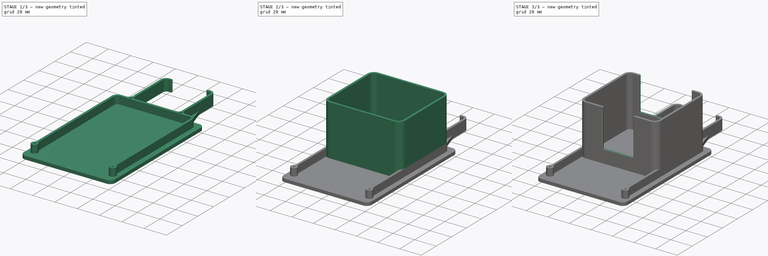
[diagram: build sequence overview — one tinted view per stage of 3, left to right]
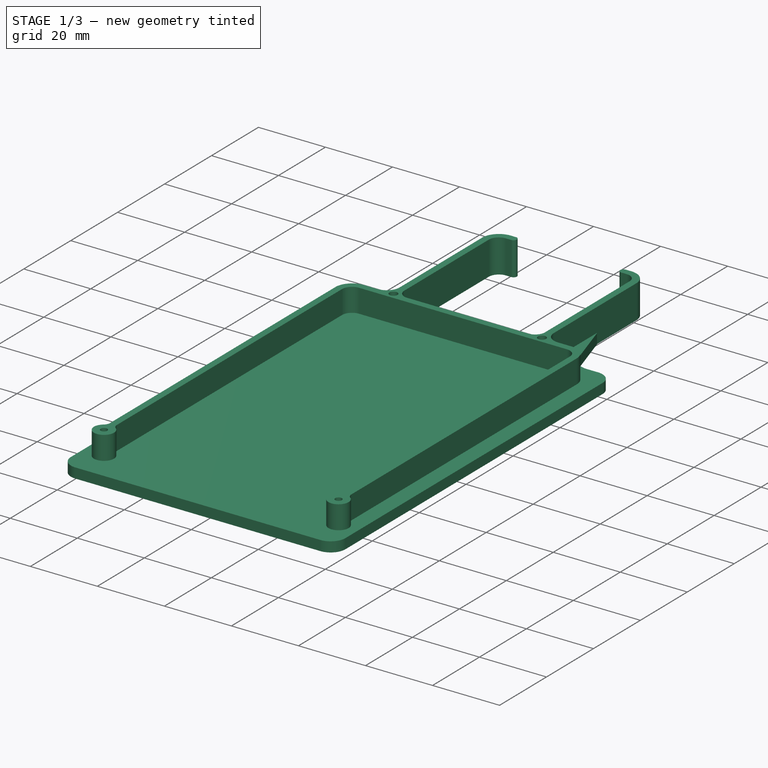
[diagram: stage 1 of 3 — iso view after this stage's code; geometry added in this stage tinted green]
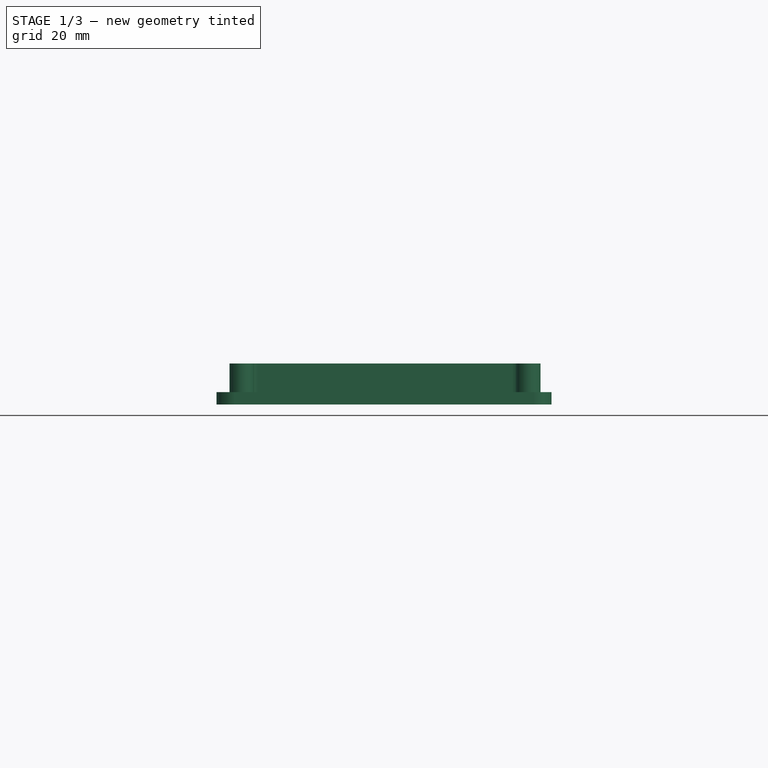
[diagram: stage 1 of 3 — front view after this stage's code; geometry added in this stage tinted green]
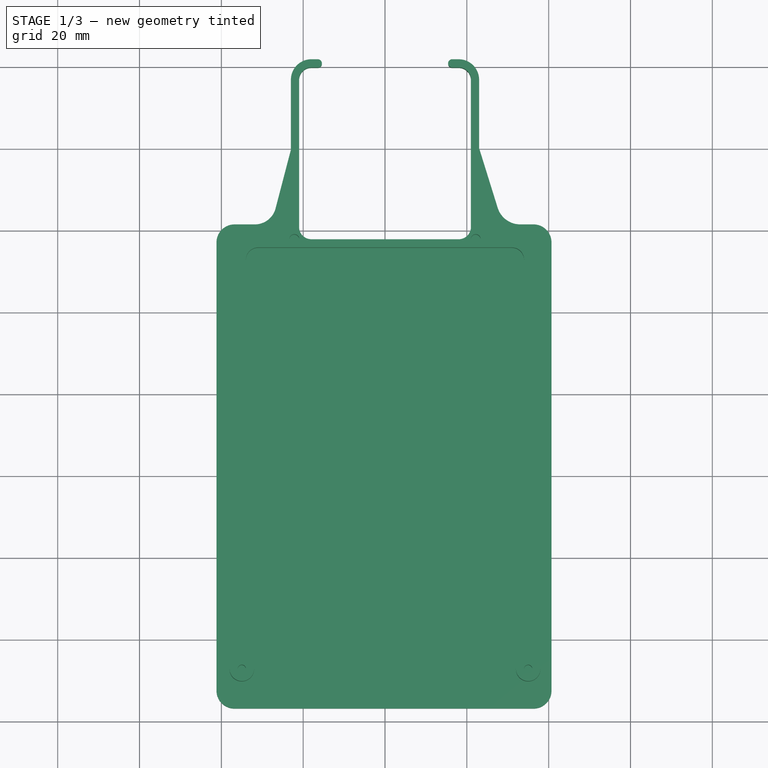
[diagram: stage 1 of 3 — top view after this stage's code; geometry added in this stage tinted green]
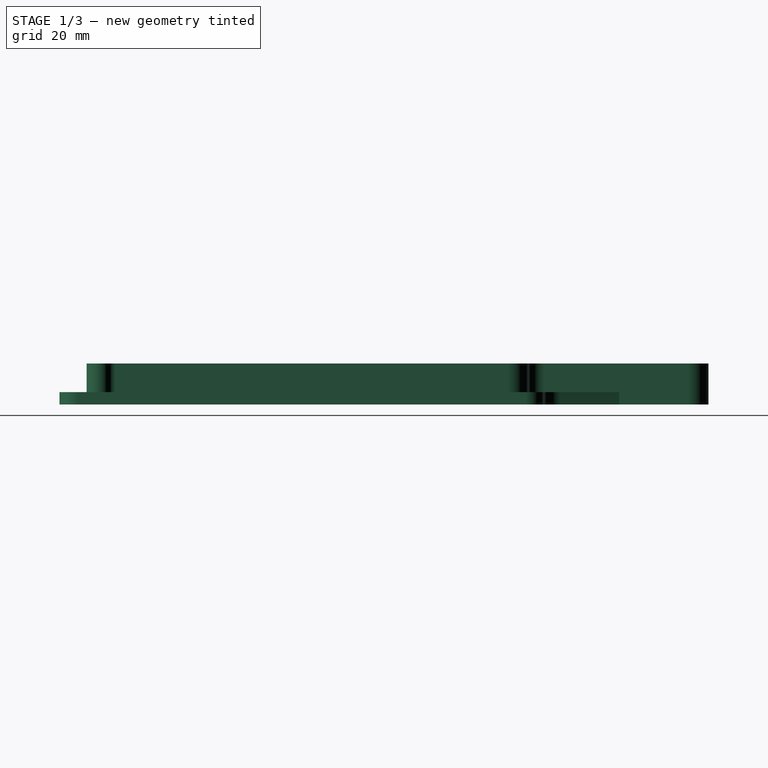
[diagram: stage 1 of 3 — right view after this stage's code; geometry added in this stage tinted green]
FCSTD DOCUMENT  (FreeCAD 0.22R37841 (Git))
Label: SunCover
License: All rights reserved
LicenseURL: http://en.wikipedia.org/wiki/All_rights_reserved
objects: Sketcher::SketchObject×5, PartDesign::Pad×3, PartDesign::Pocket×2, PartDesign::Body×1
note: 16 computed .brp shape members not serialized (recipe doc carries the construction recipe); baked Part::Feature solids carry a one-line shape summary decoded from their .brp

FEATURE [Sketcher::SketchObject] Sketch001
  FullyConstrained = false
  MapMode = 2
  Placement = pos=(0,0,6) rot=(0,0,1;0rad)
  sketch-geometry (50):
    g0: LineSegment StartX=-21 StartY=16.7953 StartZ=0 EndX=-21 EndY=-19.2047 EndZ=0
    g1: LineSegment StartX=-16.4183 StartY=19.7953 StartZ=0 EndX=-18 EndY=19.7953 EndZ=0
    g2: ArcOfCircle CenterX=-18 CenterY=16.7953 CenterZ=0 NormalX=0 NormalY=0 NormalZ=1 AngleXU=0 Radius=3 StartAngle=1.5708 EndAngle=3.14159
    g3: ArcOfCircle CenterX=-18 CenterY=-19.2047 CenterZ=0 NormalX=0 NormalY=0 NormalZ=1 AngleXU=0 Radius=3 StartAngle=3.14159 EndAngle=4.71239
    g4: LineSegment StartX=-23 StartY=16.7953 StartZ=0 EndX=-23 EndY=-18.2948 EndZ=0
    g5: LineSegment StartX=-16.4183 StartY=21.7953 StartZ=0 EndX=-18 EndY=21.7953 EndZ=0
    g6: ArcOfCircle CenterX=-18 CenterY=16.7953 CenterZ=0 NormalX=0 NormalY=0 NormalZ=1 AngleXU=0 Radius=5 StartAngle=1.5708 EndAngle=3.14159
    g7: GeomPoint X=-21 Y=19.7953 Z=0
    g8: ArcOfCircle CenterX=-30.9978 CenterY=-27.2044 CenterZ=0 NormalX=0 NormalY=0 NormalZ=1 AngleXU=0 Radius=2.99999 StartAngle=1.57095 EndAngle=3.14159
    g9: ArcOfCircle CenterX=-30.9978 CenterY=-27.2044 CenterZ=0 NormalX=0 NormalY=0 NormalZ=1 AngleXU=0 Radius=5.00002 StartAngle=1.5709 EndAngle=3.14159
    g10: GeomPoint X=-33.9983 Y=-24.2044 Z=0
    g11: LineSegment StartX=-26.9096 StartY=-22.2044 StartZ=0 EndX=-30.9983 EndY=-22.2044 EndZ=0
    g12: ArcOfCircle CenterX=-26.9096 CenterY=-18.2948 CenterZ=0 NormalX=0 NormalY=0 NormalZ=1 AngleXU=0 Radius=3.90956 StartAngle=4.71239 EndAngle=6.28319
    g13: LineSegment StartX=-16.4183 StartY=21.7953 StartZ=0 EndX=-16.4183 EndY=20.7953 EndZ=0
    g14: ArcOfCircle CenterX=-16.4183 CenterY=20.7953 CenterZ=0 NormalX=0 NormalY=0 NormalZ=1 AngleXU=0 Radius=1 StartAngle=4.71239 EndAngle=7.85398
    g15: LineSegment StartX=-3.6e-15 StartY=-22.2047 StartZ=0 EndX=-3.6e-15 EndY=-24.2044 EndZ=0
    g16: Circle CenterX=-22.1626 CenterY=-22.1779 CenterZ=0 NormalX=0 NormalY=0 NormalZ=1 AngleXU=0 Radius=1.21489
    g17: LineSegment StartX=3.6e-15 StartY=-22.2047 StartZ=0 EndX=3.6e-15 EndY=-24.2047 EndZ=0
    g18: LineSegment StartX=-35.9978 StartY=-27.2044 StartZ=0 EndX=-35.9978 EndY=-123.126 EndZ=0
    g19: ArcOfCircle CenterX=-34.9979 CenterY=-127.204 CenterZ=0 NormalX=0 NormalY=0 NormalZ=1 AngleXU=0 Radius=2.99968 StartAngle=2.22984 EndAngle=7.17177
    g20: ArcOfCircle CenterX=-38.1571 CenterY=-123.126 CenterZ=0 NormalX=0 NormalY=0 NormalZ=1 AngleXU=0 Radius=2.15928 StartAngle=5.37143 EndAngle=6.28319
    g21: ArcOfCircle CenterX=-31.5859 CenterY=-123.004 CenterZ=0 NormalX=0 NormalY=0 NormalZ=1 AngleXU=0 Radius=2.41187 StartAngle=3.1416 EndAngle=4.03017
    g22: Circle CenterX=-34.9979 CenterY=-127.204 CenterZ=0 NormalX=0 NormalY=0 NormalZ=1 AngleXU=0 Radius=1
    g23: LineSegment StartX=21 StartY=16.7953 StartZ=0 EndX=21 EndY=-19.2047 EndZ=0
    g24: LineSegment StartX=16.4183 StartY=19.7953 StartZ=0 EndX=18 EndY=19.7953 EndZ=0
    g25: ArcOfCircle CenterX=18 CenterY=16.7953 CenterZ=0 NormalX=0 NormalY=0 NormalZ=1 AngleXU=0 Radius=3 StartAngle=0 EndAngle=1.5708
    g26: ArcOfCircle CenterX=18 CenterY=-19.2047 CenterZ=0 NormalX=0 NormalY=0 NormalZ=1 AngleXU=0 Radius=3 StartAngle=4.71239 EndAngle=6.28319
    g27: LineSegment StartX=23 StartY=16.7953 StartZ=0 EndX=23 EndY=-18.2948 EndZ=0
    g28: LineSegment StartX=16.4183 StartY=21.7953 StartZ=0 EndX=18 EndY=21.7953 EndZ=0
    g29: ArcOfCircle CenterX=18 CenterY=16.7953 CenterZ=0 NormalX=0 NormalY=0 NormalZ=1 AngleXU=0 Radius=5 StartAngle=0 EndAngle=1.5708
    g30: GeomPoint X=21 Y=19.7953 Z=0
    g31: ArcOfCircle CenterX=30.9978 CenterY=-27.2044 CenterZ=0 NormalX=0 NormalY=0 NormalZ=1 AngleXU=0 Radius=2.99999 StartAngle=5.13342e-07 EndAngle=1.57064
    g32: ArcOfCircle CenterX=30.9978 CenterY=-27.2044 CenterZ=0 NormalX=0 NormalY=0 NormalZ=1 AngleXU=0 Radius=5.00002 StartAngle=5.56685e-06 EndAngle=1.57069
    g33: GeomPoint X=33.9983 Y=-24.2044 Z=0
    g34: LineSegment StartX=26.9096 StartY=-22.2044 StartZ=0 EndX=30.9983 EndY=-22.2044 EndZ=0
    g35: ArcOfCircle CenterX=26.9096 CenterY=-18.2948 CenterZ=0 NormalX=0 NormalY=0 NormalZ=1 AngleXU=0 Radius=3.90956 StartAngle=3.14159 EndAngle=4.71239
    g36: LineSegment StartX=16.4183 StartY=21.7953 StartZ=0 EndX=16.4183 EndY=20.7953 EndZ=0
    g37: ArcOfCircle CenterX=16.4183 CenterY=20.7953 CenterZ=0 NormalX=0 NormalY=0 NormalZ=1 AngleXU=0 Radius=1 StartAngle=1.5708 EndAngle=4.71239
    g38: LineSegment StartX=3.6e-15 StartY=-22.2047 StartZ=0 EndX=3.6e-15 EndY=-24.2044 EndZ=0
    g39: Circle CenterX=22.1626 CenterY=-22.1779 CenterZ=0 NormalX=0 NormalY=0 NormalZ=1 AngleXU=0 Radius=1.21489
    g40: LineSegment StartX=-3.6e-15 StartY=-22.2047 StartZ=0 EndX=-3.6e-15 EndY=-24.2047 EndZ=0
    g41: LineSegment StartX=35.9978 StartY=-27.2044 StartZ=0 EndX=35.9978 EndY=-123.126 EndZ=0
    g42: ArcOfCircle CenterX=34.9979 CenterY=-127.204 CenterZ=0 NormalX=0 NormalY=0 NormalZ=1 AngleXU=0 Radius=2.99968 StartAngle=2.25301 EndAngle=7.19494
    g43: ArcOfCircle CenterX=38.1571 CenterY=-123.126 CenterZ=0 NormalX=0 NormalY=0 NormalZ=1 AngleXU=0 Radius=2.15928 StartAngle=3.14159 EndAngle=4.05335
    g44: ArcOfCircle CenterX=31.5859 CenterY=-123.004 CenterZ=0 NormalX=0 NormalY=0 NormalZ=1 AngleXU=0 Radius=2.41187 StartAngle=5.3946 EndAngle=6.28318
    g45: Circle CenterX=34.9979 CenterY=-127.204 CenterZ=0 NormalX=0 NormalY=0 NormalZ=1 AngleXU=0 Radius=1
    g46: LineSegment StartX=-30.9982 StartY=-24.2044 StartZ=0 EndX=30.9982 EndY=-24.2044 EndZ=0
    g47: LineSegment StartX=-18 StartY=-22.2047 StartZ=0 EndX=18 EndY=-22.2047 EndZ=0
    g48: LineSegment StartX=-33.9978 StartY=-123.004 StartZ=0 EndX=-33.9978 EndY=-27.2044 EndZ=0
    g49: LineSegment StartX=33.9978 StartY=-123.004 StartZ=0 EndX=33.9978 EndY=-27.2044 EndZ=0
  constraints (79):
    c: Tangent(g0,g2) = -1.5708
    c: Tangent(g0,g3) = -1.5708
    c: Tangent(g1,g2) = -1.5708
    c: Vertical(g0)
    c: Horizontal(g1)
    c: Equal(g2,g3)
    c: Tangent(g4,g6) = -1.5708
    c: Tangent(g5,g6) = -1.5708
    c: Coincident(g2,g6)
    c: Vertical(g4)
    c: PointOnObject(g7,g0)
    c: PointOnObject(g7,g1)
    c: Distance(g3,g1) = 42
    c: Radius(g3) = 3
    c: Distance(g4,g0) = 2
    c: Coincident(g11,g9) = -1.5708
    c: Coincident(g8,g9)
    c: Distance(g-1,g0) = 21
    c: Tangent(g4,g12) = 1.5708
    c: Tangent(g11,g12) = 1.5708
    c: Distance(g13) = 1
    c: Vertical(g13)
    c: Coincident(g14,g13)
    c: Coincident(g5,g13)
    c: Coincident(g14,g5)
    c: Coincident(g14,g1)
    c: Horizontal(g11)
    c: Vertical(g18)
    c: Coincident(g18,g9)
    c: Tangent(g18,g20) = 1.5708
    c: Tangent(g19,g20) = 1.5708
    c: Tangent(g19,g21) = 1.5708
    c: Diameter(g22) = 2
    c: Coincident(g22,g19)
    c: Tangent(g23,g25) = 1.5708
    c: Tangent(g23,g26) = 1.5708
    c: Tangent(g24,g25) = 1.5708
    c: Vertical(g23)
    c: Horizontal(g24)
    c: Equal(g25,g26)
    c: Tangent(g27,g29) = 1.5708
    c: Tangent(g28,g29) = 1.5708
    c: Coincident(g25,g29)
    c: Vertical(g27)
    c: PointOnObject(g30,g23)
    c: PointOnObject(g30,g24)
    c: Distance(g26,g24) = 42
    c: Radius(g26) = 3
    c: Distance(g27,g23) = 2
    c: Coincident(g34,g32) = -1.5708
    c: Coincident(g31,g32)
    c: Tangent(g27,g35) = -1.5708
    c: Tangent(g34,g35) = -1.5708
    c: Distance(g36) = 1
    c: Vertical(g36)
    c: Coincident(g37,g36)
    c: Coincident(g28,g36)
    c: Coincident(g37,g28)
    c: Coincident(g37,g24)
    c: Horizontal(g34)
    c: Vertical(g41)
    c: Coincident(g41,g32)
    c: Tangent(g41,g43) = -1.5708
    c: Tangent(g42,g43) = 1.5708
    c: Tangent(g42,g44) = 1.5708
    c: Diameter(g45) = 2
    c: Coincident(g45,g42)
    c: Coincident(g46,g8)
    c: Coincident(g46,g31)
    c: Horizontal(g46)
    c: Tangent(g47,g3) = -1.5708
    c: Coincident(g47,g26)
    c: Horizontal(g47)
    c: Coincident(g48,g21)
    c: Coincident(g48,g8)
    c: Vertical(g48)
    c: Coincident(g49,g44)
    c: Coincident(g49,g31)
    c: Vertical(g49)
FEATURE [Sketcher::SketchObject] Sketch003
  AttachmentOffset = pos=(0,0,-3) rot=(0,0,1;0rad)
  FullyConstrained = false
  MapMode = 2
  Placement = pos=(0,0,6) rot=(0,0,1;0rad)
  sketch-geometry (25):
    g0: LineSegment StartX=-41.1889 StartY=-22.8622 StartZ=0 EndX=-41.1889 EndY=-132.399 EndZ=0
    g1: LineSegment StartX=-36.7803 StartY=-136.808 StartZ=0 EndX=36.287 EndY=-136.808 EndZ=0
    g2: LineSegment StartX=40.6956 StartY=-132.399 StartZ=0 EndX=40.6956 EndY=-22.8622 EndZ=0
    g3: LineSegment StartX=36.287 StartY=-18.4537 StartZ=0 EndX=33.0572 EndY=-18.4537 EndZ=0
    g4: ArcOfCircle CenterX=-36.7803 CenterY=-22.8622 CenterZ=0 NormalX=0 NormalY=0 NormalZ=1 AngleXU=0 Radius=4.40858 StartAngle=1.5708 EndAngle=3.14159
    g5: ArcOfCircle CenterX=-36.7803 CenterY=-132.399 CenterZ=0 NormalX=0 NormalY=0 NormalZ=1 AngleXU=0 Radius=4.40858 StartAngle=3.14159 EndAngle=4.71239
    g6: ArcOfCircle CenterX=36.287 CenterY=-132.399 CenterZ=0 NormalX=0 NormalY=0 NormalZ=1 AngleXU=0 Radius=4.40858 StartAngle=4.71239 EndAngle=6.28319
    g7: ArcOfCircle CenterX=36.287 CenterY=-22.8622 CenterZ=0 NormalX=0 NormalY=0 NormalZ=1 AngleXU=0 Radius=4.40858 StartAngle=0 EndAngle=1.5708
    g8: LineSegment StartX=-31.8103 StartY=-18.4537 StartZ=0 EndX=-36.7803 EndY=-18.4537 EndZ=0
    g9: GeomPoint X=26.1341 Y=-18.4537 Z=0
    g10: GeomPoint X=26.1341 Y=-23.1255 Z=0
    g11: GeomPoint X=-25.7901 Y=-23.1255 Z=0
    g12: LineSegment StartX=27.5359 StartY=-14.3893 StartZ=0 EndX=23.0584 EndY=-4e-16 EndZ=0
    g13: LineSegment StartX=-22.9488 StartY=0 StartZ=0 EndX=-26.7522 EndY=-14.5479 EndZ=0
    g14: LineSegment StartX=-21 StartY=-19.2047 StartZ=0 EndX=-21 EndY=0 EndZ=0
    g15: ArcOfCircle CenterX=-17.9782 CenterY=-19.1829 CenterZ=0 NormalX=0 NormalY=0 NormalZ=1 AngleXU=0 Radius=3.02191 StartAngle=3.14882 EndAngle=4.70516
    g16: ArcOfCircle CenterX=-31.8103 CenterY=-13.2255 CenterZ=0 NormalX=0 NormalY=0 NormalZ=1 AngleXU=0 Radius=5.22813 StartAngle=4.71239 EndAngle=6.02747
    g17: GeomPoint X=-27.7733 Y=-18.4537 Z=0
    g18: ArcOfCircle CenterX=33.0572 CenterY=-12.6712 CenterZ=0 NormalX=0 NormalY=0 NormalZ=1 AngleXU=0 Radius=5.78245 StartAngle=3.44326 EndAngle=4.71239
    g19: GeomPoint X=28.8006 Y=-18.4537 Z=0
    g20: LineSegment StartX=21.0449 StartY=-4e-16 StartZ=0 EndX=21.0449 EndY=-19.4631 EndZ=0
    g21: LineSegment StartX=-18 StartY=-22.2047 StartZ=0 EndX=18.3032 EndY=-22.2047 EndZ=0
    g22: ArcOfCircle CenterX=18.0492 CenterY=-19.209 CenterZ=0 NormalX=0 NormalY=0 NormalZ=1 AngleXU=0 Radius=3.00643 StartAngle=4.79698 EndAngle=6.19859
    g23: LineSegment StartX=-22.9488 StartY=0 StartZ=0 EndX=-21 EndY=0 EndZ=0
    g24: LineSegment StartX=21.0449 StartY=-4e-16 StartZ=0 EndX=23.0584 EndY=-4e-16 EndZ=0
  constraints (36):
    c: Tangent(g0,g4) = -1.5708
    c: Tangent(g0,g5) = -1.5708
    c: Tangent(g1,g5) = -1.5708
    c: Tangent(g1,g6) = -1.5708
    c: Tangent(g2,g6) = -1.5708
    c: Tangent(g2,g7) = -1.5708
    c: Tangent(g3,g7) = -1.5708
    c: Coincident(g8,g4) = -1.5708
    c: Vertical(g0)
    c: Vertical(g2)
    c: Horizontal(g1)
    c: Horizontal(g3)
    c: Equal(g4,g5)
    c: Equal(g5,g6)
    c: Equal(g6,g7)
    c: PointOnObject(g9,g3)
    c: PointOnObject(g12,g-1)
    c: Coincident(g15,g14)
    c: PointOnObject(g17,g13)
    c: PointOnObject(g17,g8)
    c: Tangent(g13,g16) = 1.5708
    c: Tangent(g8,g16) = 1.5708
    c: PointOnObject(g19,g12)
    c: PointOnObject(g19,g3)
    c: Tangent(g12,g18) = 1.5708
    c: Tangent(g3,g18) = 1.5708
    c: Horizontal(g21)
    c: Coincident(g21,g15)
    c: Coincident(g22,g20)
    c: Coincident(g22,g21)
    c: Coincident(g23,g13)
    c: Coincident(g23,g14)
    c: Horizontal(g23)
    c: Coincident(g24,g20)
    c: Coincident(g24,g12)
    c: Horizontal(g24)
FEATURE [PartDesign::Pad] Pad004
  Direction = (0,0,1)
  Length = 3
  Length2 = 10
  Placement = pos=(0,0,6) rot=(0,0,1;0rad)
  Profile = -> Sketch003
  ReferenceAxis = -> Sketch003 [N_Axis]
  Suppressed = false
  Type = 0
FEATURE [PartDesign::Pad] Pad005
  BaseFeature = -> Pad004
  Direction = (0,0,1)
  Length = 10
  Length2 = 10
  Placement = pos=(0,0,6) rot=(0,0,1;0rad)
  Profile = -> Sketch001
  ReferenceAxis = -> Sketch001 [N_Axis]
  Suppressed = false
  Type = 0
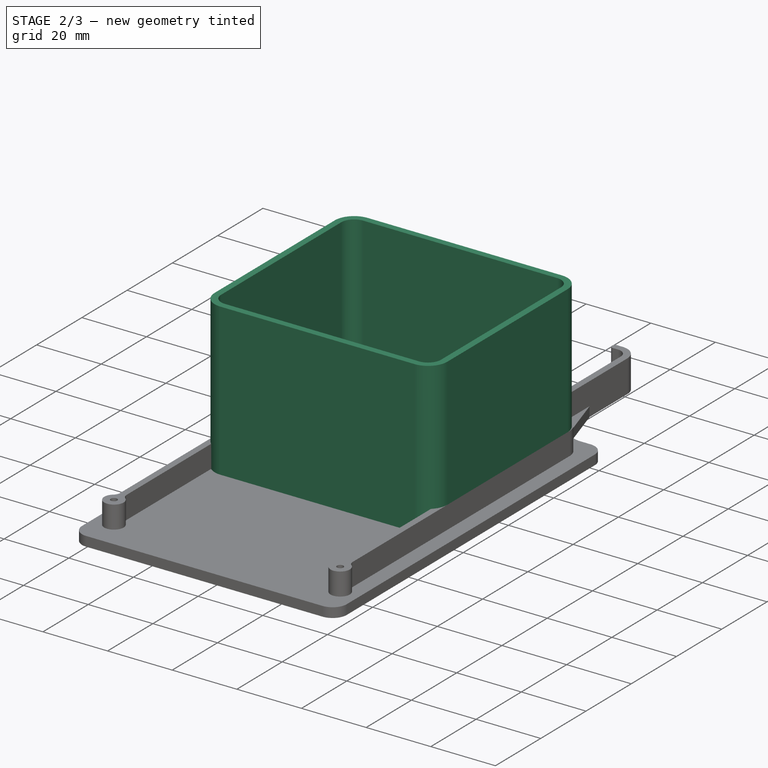
[diagram: stage 2 of 3 — iso view after this stage's code; geometry added in this stage tinted green]
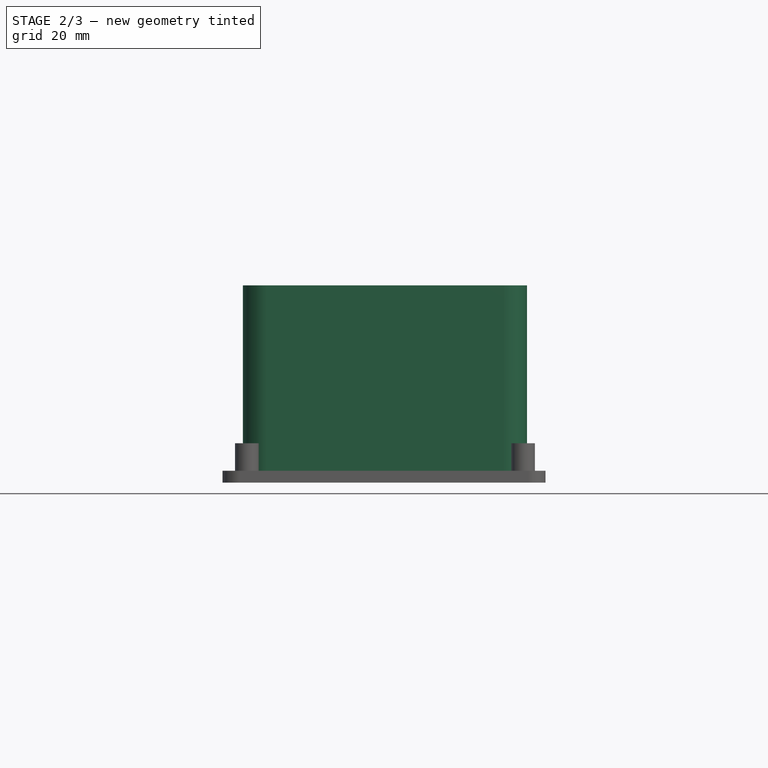
[diagram: stage 2 of 3 — front view after this stage's code; geometry added in this stage tinted green]
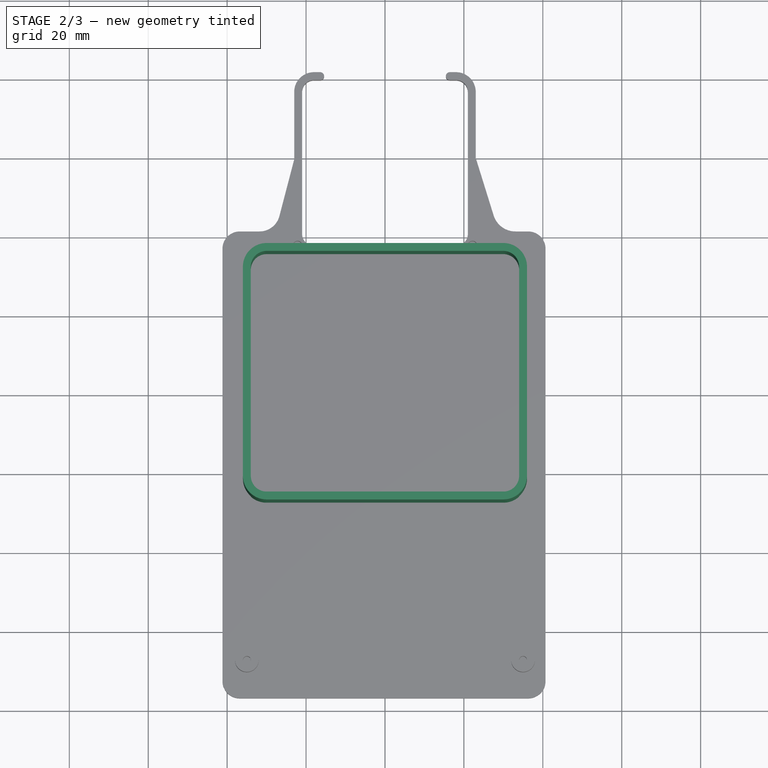
[diagram: stage 2 of 3 — top view after this stage's code; geometry added in this stage tinted green]
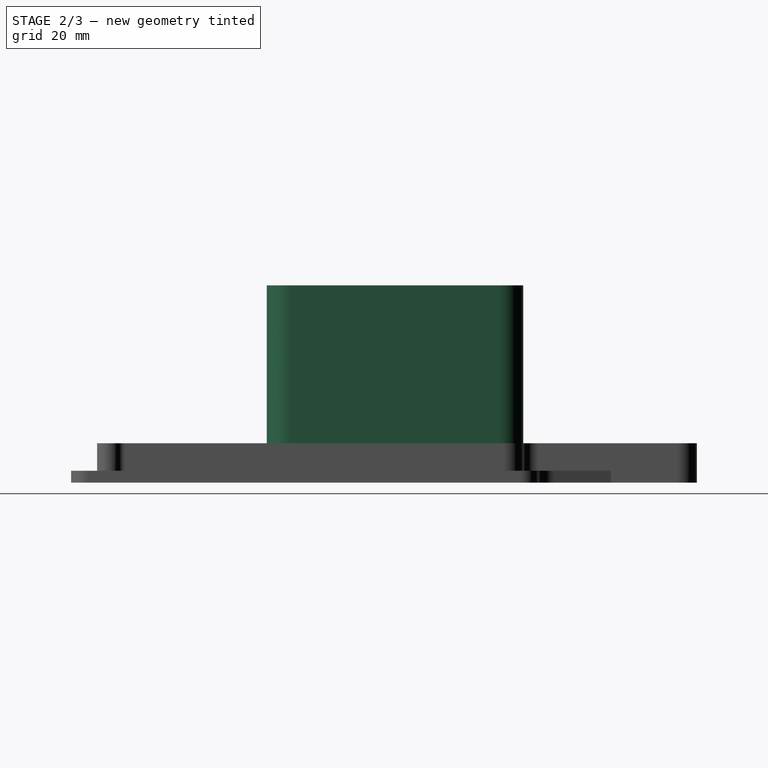
[diagram: stage 2 of 3 — right view after this stage's code; geometry added in this stage tinted green]
FEATURE [Sketcher::SketchObject] Sketch
  AttachmentSupport = -> [Pad005]
  ExternalGeometry = -> [Sketch001]
  FullyConstrained = false
  MapMode = 5
  Placement = pos=(0,0,16) rot=(0,0,1;0rad)
  sketch-geometry (23):
    g0: LineSegment StartX=-36.0022 StartY=-22.2047 StartZ=0 EndX=-68 EndY=-22.2047 EndZ=0
    g1: LineSegment StartX=-36.0022 StartY=-22.2047 StartZ=0 EndX=-36.0022 EndY=-10.2044 EndZ=0
    g2: LineSegment StartX=35.9978 StartY=-22.2047 StartZ=0 EndX=58 EndY=-22.2047 EndZ=0
    g3: LineSegment StartX=35.9978 StartY=-22.2047 StartZ=0 EndX=35.9978 EndY=12.7956 EndZ=0
    g4: LineSegment StartX=-18 StartY=-22.2047 StartZ=0 EndX=-18 EndY=-87.2047 EndZ=0
    g5: LineSegment StartX=-36.0022 StartY=-28.2047 StartZ=0 EndX=-36.0022 EndY=-81.2047 EndZ=0
    g6: LineSegment StartX=-30.0022 StartY=-87.2047 StartZ=0 EndX=29.9978 EndY=-87.2047 EndZ=0
    g7: LineSegment StartX=35.9978 StartY=-81.2047 StartZ=0 EndX=35.9978 EndY=-28.2047 EndZ=0
    g8: LineSegment StartX=29.9978 StartY=-22.2047 StartZ=0 EndX=-30.0022 EndY=-22.2047 EndZ=0
    g9: ArcOfCircle CenterX=-30.0022 CenterY=-28.2047 CenterZ=0 NormalX=0 NormalY=0 NormalZ=1 AngleXU=0 Radius=6 StartAngle=1.5708 EndAngle=3.14159
    g10: ArcOfCircle CenterX=-30.0022 CenterY=-81.2047 CenterZ=0 NormalX=0 NormalY=0 NormalZ=1 AngleXU=0 Radius=6 StartAngle=3.14159 EndAngle=4.71239
    g11: ArcOfCircle CenterX=29.9978 CenterY=-81.2047 CenterZ=0 NormalX=0 NormalY=0 NormalZ=1 AngleXU=0 Radius=6 StartAngle=4.71239 EndAngle=6.28319
    g12: ArcOfCircle CenterX=29.9978 CenterY=-28.2047 CenterZ=0 NormalX=0 NormalY=0 NormalZ=1 AngleXU=0 Radius=6 StartAngle=0 EndAngle=1.5708
    g13: LineSegment StartX=-34.0022 StartY=-28.2047 StartZ=0 EndX=-34.0022 EndY=-81.2047 EndZ=0
    g14: LineSegment StartX=-30.0022 StartY=-85.2047 StartZ=0 EndX=29.9978 EndY=-85.2047 EndZ=0
    g15: LineSegment StartX=33.9978 StartY=-81.2047 StartZ=0 EndX=33.9978 EndY=-28.2047 EndZ=0
    g16: LineSegment StartX=29.9978 StartY=-24.2047 StartZ=0 EndX=-30.0022 EndY=-24.2047 EndZ=0
    g17: ArcOfCircle CenterX=-30.0022 CenterY=-28.2047 CenterZ=0 NormalX=0 NormalY=0 NormalZ=1 AngleXU=0 Radius=4 StartAngle=1.5708 EndAngle=3.14159
    g18: ArcOfCircle CenterX=-30.0022 CenterY=-81.2047 CenterZ=0 NormalX=0 NormalY=0 NormalZ=1 AngleXU=0 Radius=4 StartAngle=3.14159 EndAngle=4.71239
    g19: ArcOfCircle CenterX=29.9978 CenterY=-81.2047 CenterZ=0 NormalX=0 NormalY=0 NormalZ=1 AngleXU=0 Radius=4 StartAngle=4.71239 EndAngle=6.28319
    g20: ArcOfCircle CenterX=29.9978 CenterY=-28.2047 CenterZ=0 NormalX=0 NormalY=0 NormalZ=1 AngleXU=0 Radius=4 StartAngle=0 EndAngle=1.5708
    g21: GeomPoint X=-36.0022 Y=-22.2047 Z=0
    g22: GeomPoint X=35.9978 Y=-87.2047 Z=0
  constraints (49):
    c: Horizontal(g0)
    c: Vertical(g1)
    c: Horizontal(g2)
    c: Vertical(g3)
    c: Distance(g4) = 65
    c: Coincident(g4,g-5)
    c: Vertical(g4)
    c: Coincident(g1,g0)
    c: Coincident(g2,g3)
    c: Tangent(g5,g9) = -1.5708
    c: Tangent(g5,g10) = -1.5708
    c: Tangent(g6,g10) = -1.5708
    c: Tangent(g6,g11) = -1.5708
    c: Tangent(g7,g11) = -1.5708
    c: Tangent(g7,g12) = -1.5708
    c: Tangent(g8,g12) = -1.5708
    c: Tangent(g8,g9) = -1.5708
    c: Vertical(g5)
    c: Vertical(g7)
    c: Horizontal(g6)
    c: Horizontal(g8)
    c: Equal(g9,g10)
    c: Equal(g10,g11)
    c: Equal(g11,g12)
    c: Tangent(g13,g17) = -1.5708
    c: Tangent(g13,g18) = -1.5708
    c: Tangent(g14,g18) = -1.5708
    c: Tangent(g14,g19) = -1.5708
    c: Tangent(g15,g19) = -1.5708
    c: Tangent(g15,g20) = -1.5708
    c: Tangent(g16,g20) = -1.5708
    c: Tangent(g16,g17) = -1.5708
    c: Coincident(g9,g17)
    c: Coincident(g10,g18)
    c: Coincident(g11,g19)
    c: Coincident(g12,g20)
    c: Vertical(g13)
    c: Vertical(g15)
    c: Horizontal(g14)
    c: PointOnObject(g21,g5)
    c: PointOnObject(g21,g8)
    c: PointOnObject(g22,g6)
    c: PointOnObject(g22,g7)
    c: Distance(g5,g7) = 72
    c: Distance(g6,g8) = 65
    c: Radius(g10) = 6
    c: Distance(g13,g5) = 2
    c: Coincident(g21,g0)
    c: PointOnObject(g22,g-4)
FEATURE [PartDesign::Pad] Pad
  BaseFeature = -> Pad005
  Direction = (0,0,1)
  Length = 40
  Length2 = 10
  Placement = pos=(0,0,6) rot=(0,0,1;0rad)
  Profile = -> Sketch
  ReferenceAxis = -> Sketch [N_Axis]
  Suppressed = false
  Type = 4
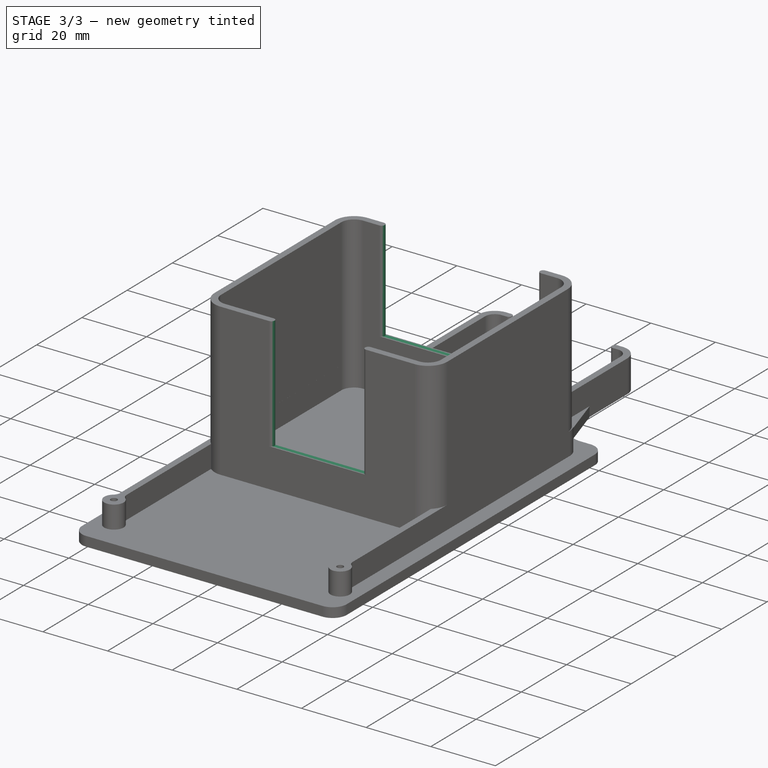
[diagram: stage 3 of 3 — iso view after this stage's code; geometry added in this stage tinted green]
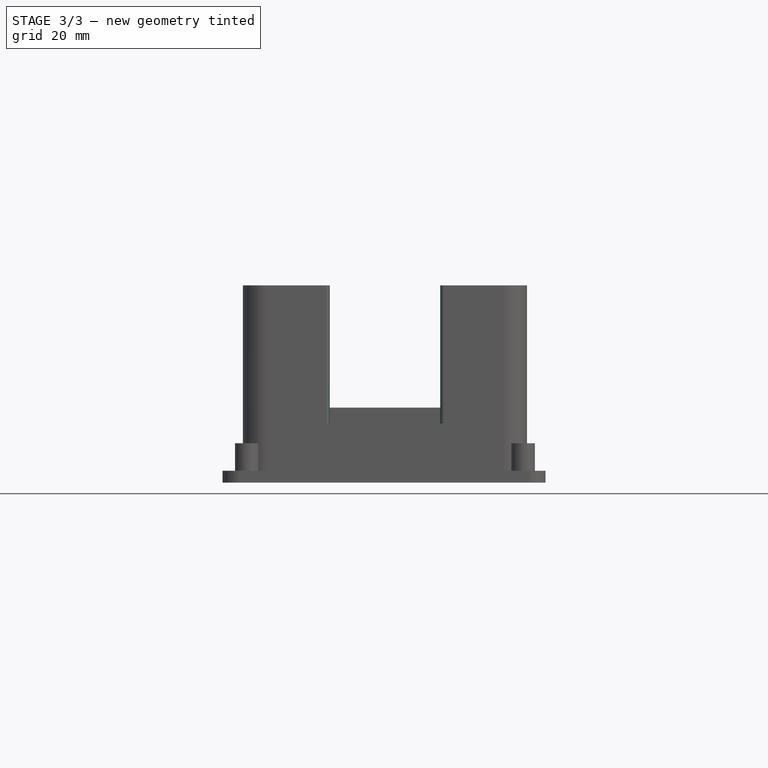
[diagram: stage 3 of 3 — front view after this stage's code; geometry added in this stage tinted green]
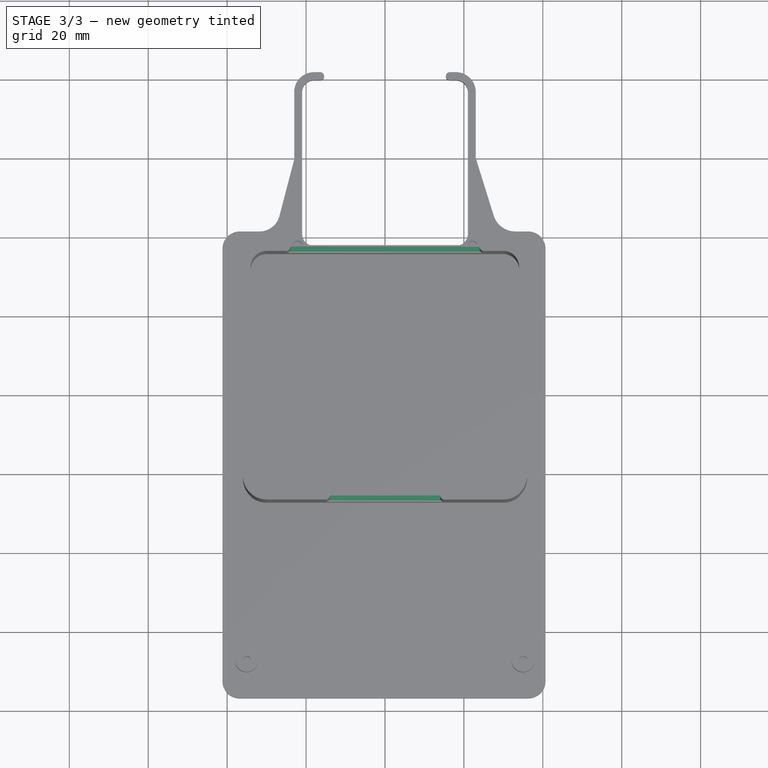
[diagram: stage 3 of 3 — top view after this stage's code; geometry added in this stage tinted green]
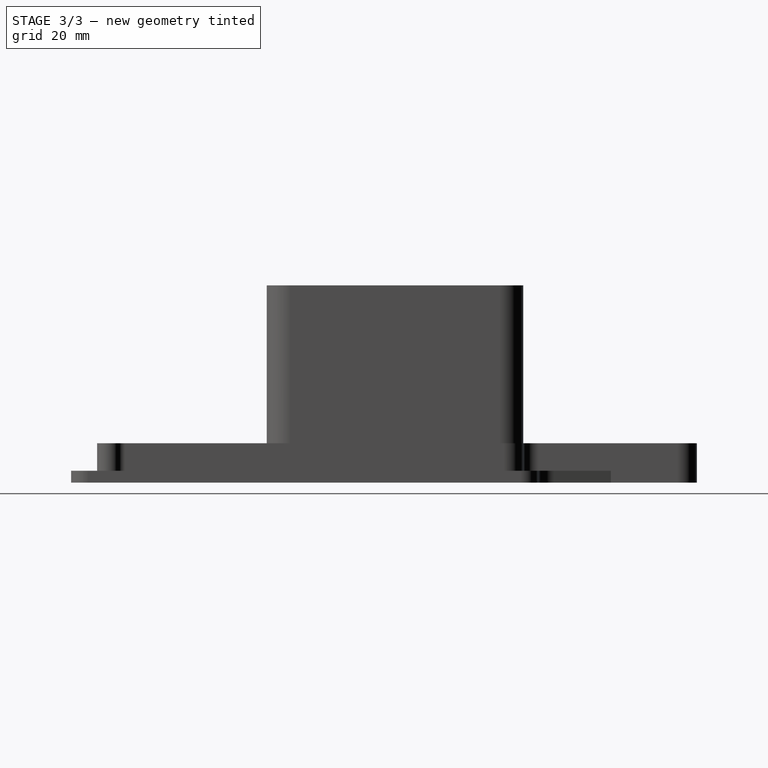
[diagram: stage 3 of 3 — right view after this stage's code; geometry added in this stage tinted green]
FEATURE [Sketcher::SketchObject] Sketch004
  AttachmentSupport = -> [Pad]
  ExternalGeometry = -> [Pad]
  FullyConstrained = false
  MapMode = 5
  Placement = pos=(0,0,56) rot=(0,0,1;0rad)
  sketch-geometry (6):
    g0: LineSegment StartX=-15.0022 StartY=-85.2047 StartZ=0 EndX=-15.0022 EndY=-87.2047 EndZ=0
    g1: LineSegment StartX=-15.0022 StartY=-87.2047 StartZ=0 EndX=14.9978 EndY=-87.2047 EndZ=0
    g2: LineSegment StartX=14.9978 StartY=-87.2047 StartZ=0 EndX=14.9978 EndY=-85.2047 EndZ=0
    g3: LineSegment StartX=14.9978 StartY=-85.2047 StartZ=0 EndX=-15.0022 EndY=-85.2047 EndZ=0
    g4: ArcOfCircle CenterX=-15.004 CenterY=-86.2047 CenterZ=0 NormalX=0 NormalY=0 NormalZ=1 AngleXU=0 Radius=1 StartAngle=4.7142 EndAngle=7.85217
    g5: ArcOfCircle CenterX=15.0009 CenterY=-86.2047 CenterZ=0 NormalX=0 NormalY=0 NormalZ=1 AngleXU=0 Radius=1 StartAngle=1.57387 EndAngle=4.70932
  constraints (14):
    c: PointOnObject(g0,g-3)
    c: PointOnObject(g2,g-3)
    c: Distance(g0) = 2
    c: Vertical(g0)
    c: Distance(g1) = 30
    c: Coincident(g1,g0)
    c: Horizontal(g1)
    c: Coincident(g2,g1)
    c: Coincident(g3,g2)
    c: Coincident(g3,g0)
    c: Coincident(g4,g0)
    c: Coincident(g4,g0)
    c: Coincident(g5,g2)
    c: Coincident(g5,g1)
FEATURE [PartDesign::Pocket] Pocket
  BaseFeature = -> Pad
  Direction = (0,0,-1)
  Length = 35
  Length2 = 5
  Placement = pos=(0,0,6) rot=(0,0,1;0rad)
  Profile = -> Sketch004
  ReferenceAxis = -> Sketch004 [N_Axis]
  Suppressed = false
  Type = 0
FEATURE [Sketcher::SketchObject] Sketch005
  AttachmentSupport = -> [Pocket]
  ExternalGeometry = -> [Pocket]
  FullyConstrained = false
  MapMode = 5
  Placement = pos=(0,0,56) rot=(0,0,1;0rad)
  sketch-geometry (6):
    g0: LineSegment StartX=-25.0022 StartY=-24.2047 StartZ=0 EndX=-25.0022 EndY=-22.2047 EndZ=0
    g1: LineSegment StartX=24.9978 StartY=-24.2047 StartZ=0 EndX=24.9978 EndY=-22.2047 EndZ=0
    g2: LineSegment StartX=24.9978 StartY=-22.2047 StartZ=0 EndX=-25.0022 EndY=-22.2047 EndZ=0
    g3: LineSegment StartX=-25.0022 StartY=-24.2047 StartZ=0 EndX=24.9978 EndY=-24.2047 EndZ=0
    g4: ArcOfCircle CenterX=-25.0002 CenterY=-23.2047 CenterZ=0 NormalX=0 NormalY=0 NormalZ=1 AngleXU=0 Radius=1 StartAngle=4.71041 EndAngle=7.85596
    g5: ArcOfCircle CenterX=24.9982 CenterY=-23.2047 CenterZ=0 NormalX=0 NormalY=0 NormalZ=1 AngleXU=0 Radius=1 StartAngle=1.57119 EndAngle=4.712
  constraints (14):
    c: PointOnObject(g0,g-4)
    c: PointOnObject(g1,g-4)
    c: PointOnObject(g0,g-3)
    c: Vertical(g0)
    c: PointOnObject(g1,g-3)
    c: Vertical(g1)
    c: Coincident(g2,g1)
    c: Coincident(g2,g0)
    c: Coincident(g3,g0)
    c: Coincident(g3,g1)
    c: Coincident(g4,g0)
    c: Coincident(g4,g0)
    c: Coincident(g5,g1)
    c: Coincident(g5,g1)
FEATURE [PartDesign::Pocket] Pocket001
  BaseFeature = -> Pocket
  Direction = (0,0,-1)
  Length = 31
  Length2 = 5
  Placement = pos=(0,0,6) rot=(0,0,1;0rad)
  Profile = -> Sketch005
  ReferenceAxis = -> Sketch005 [N_Axis]
  Suppressed = false
  Type = 0
FEATURE [PartDesign::Body] Body001
  AllowCompound = false
  Group = -> [Sketch001,Sketch003,Pad004,Pad005,Sketch,Pad,Sketch004,Pocket,Sketch005,Pocket001]
  Origin = -> Origin001
  Tip = -> Pocket001
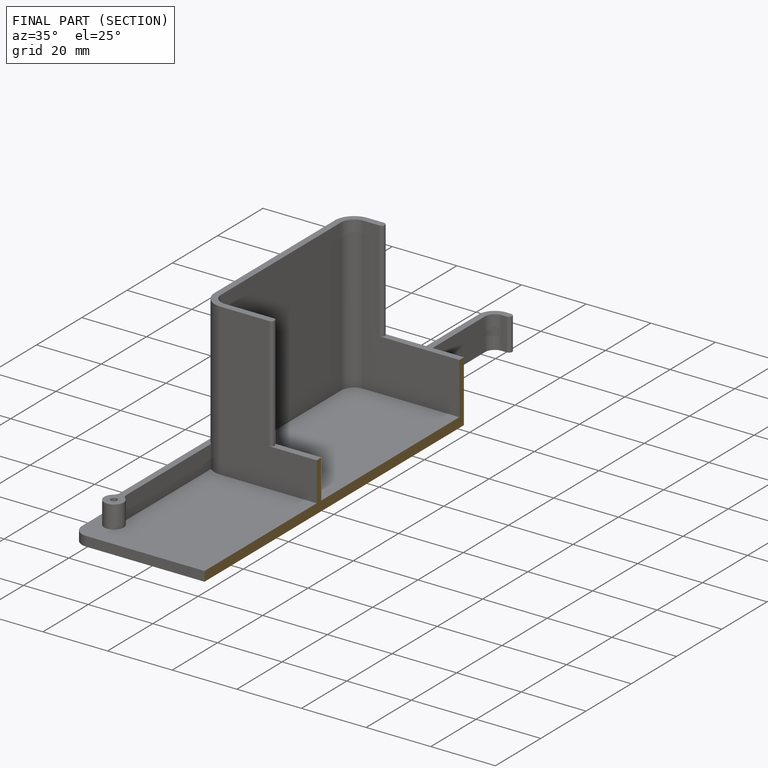
[diagram: finished part — half-section view (interior)]
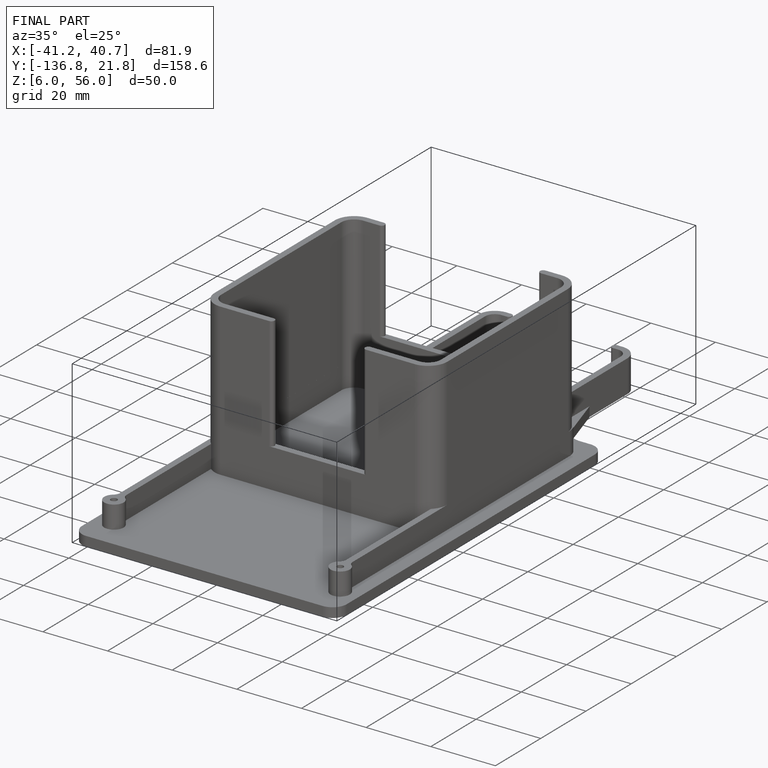
[diagram: finished part — iso view with bounding-box wireframe]
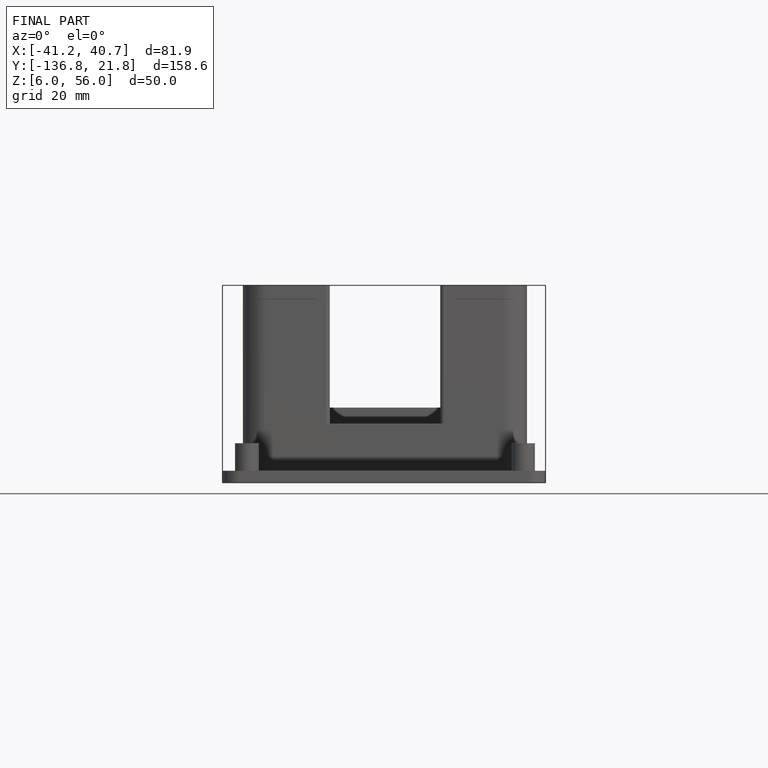
[diagram: finished part — front view with bounding-box wireframe]
